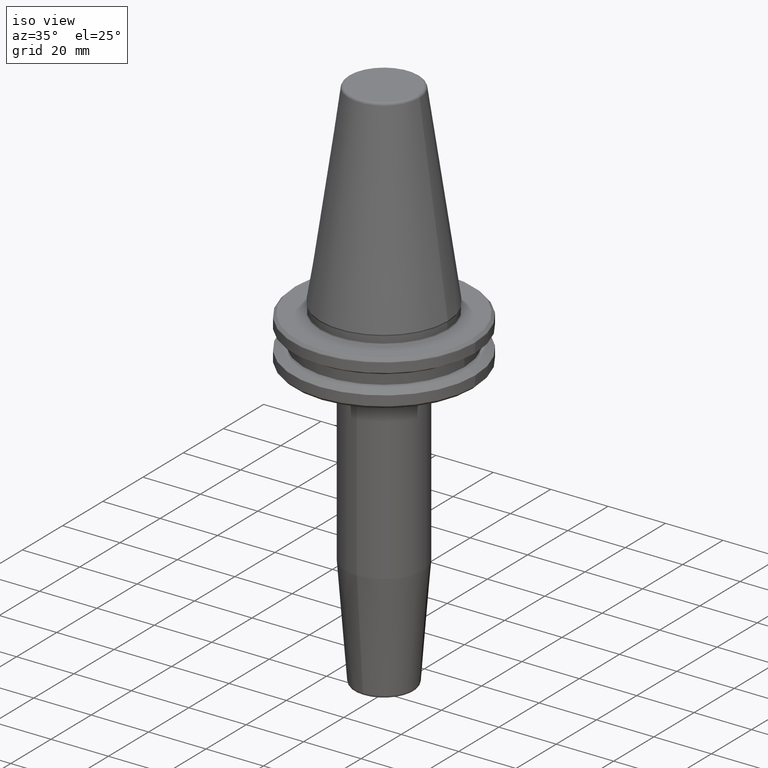
[diagram: clean part render]
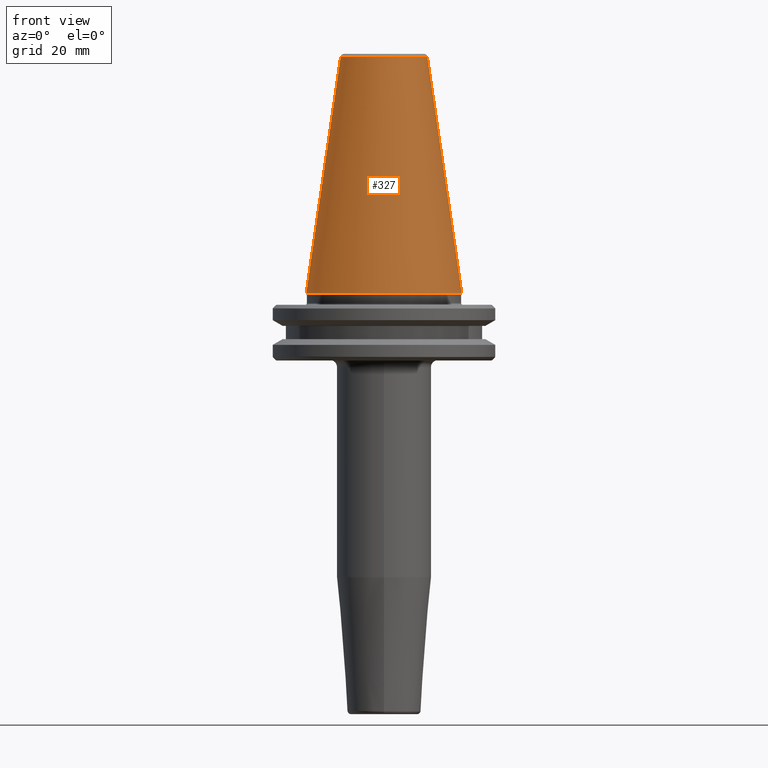
[diagram: tour spotlight — one face highlighted and labeled with its STEP entity id]
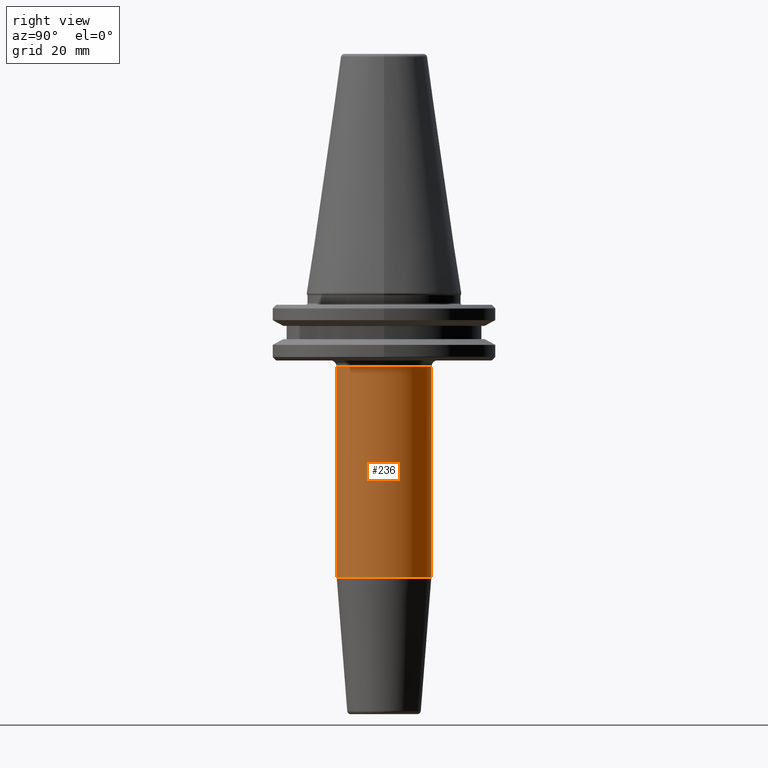
[diagram: tour spotlight — one face highlighted and labeled with its STEP entity id]
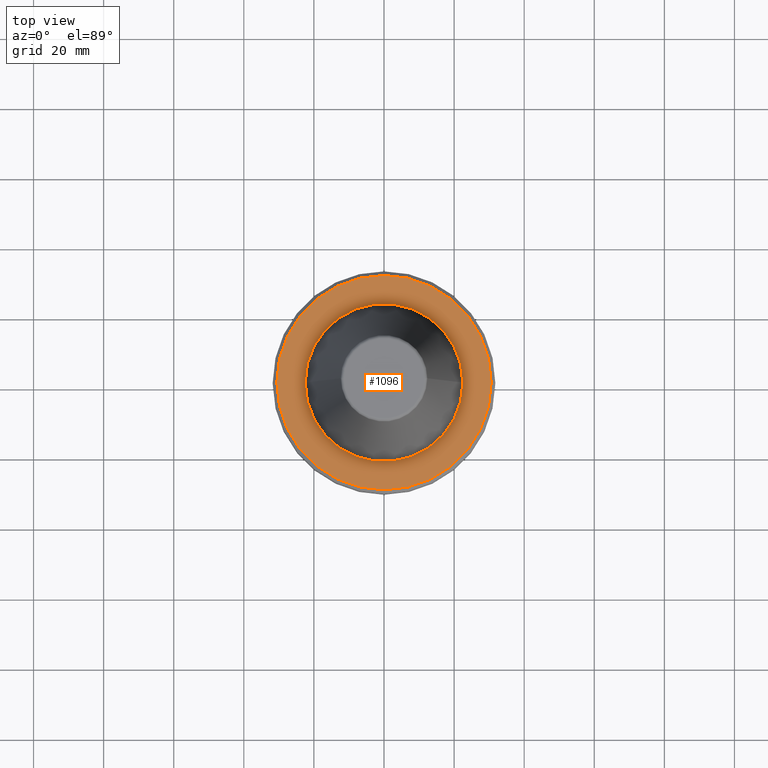
[diagram: tour spotlight — one face highlighted and labeled with its STEP entity id]
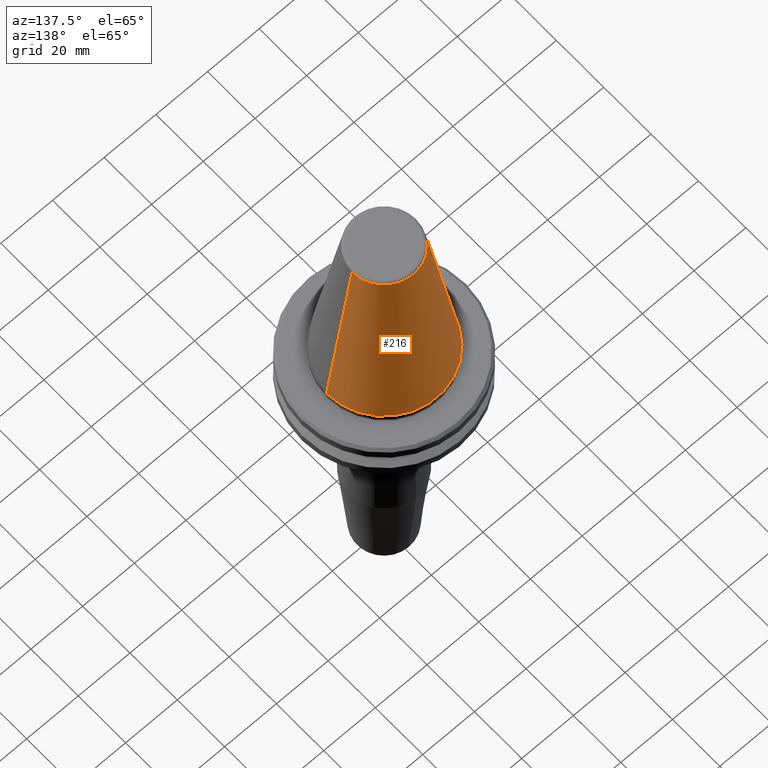
[diagram: tour spotlight — one face highlighted and labeled with its STEP entity id]
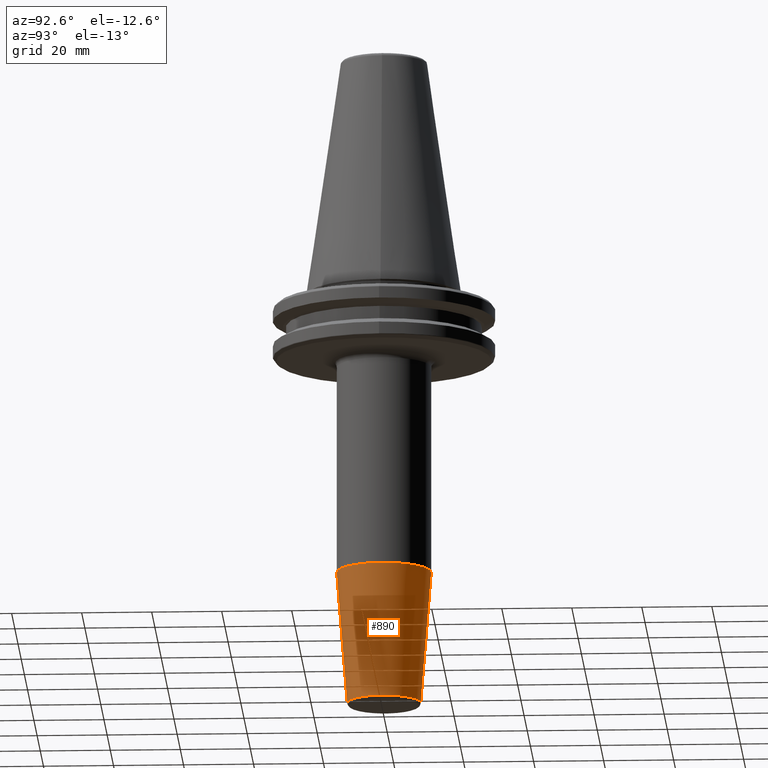
[diagram: tour spotlight — one face highlighted and labeled with its STEP entity id]
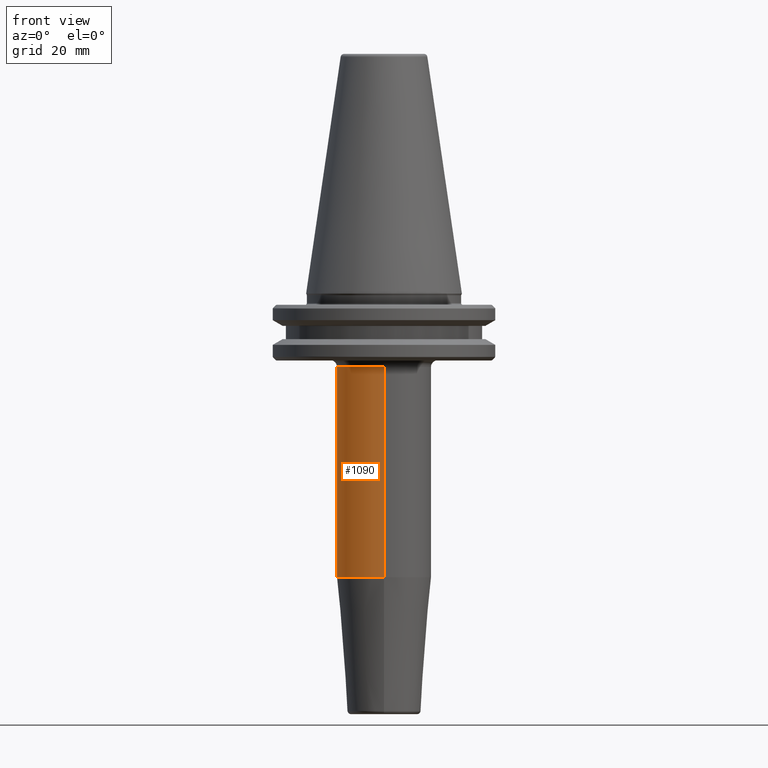
[diagram: tour spotlight — one face highlighted and labeled with its STEP entity id]
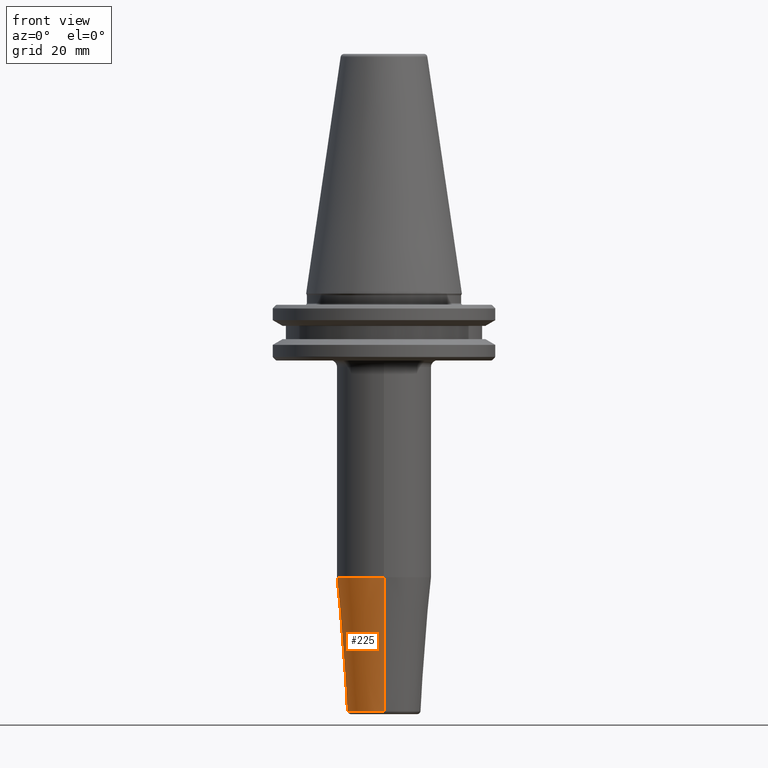
[diagram: tour spotlight — one face highlighted and labeled with its STEP entity id]
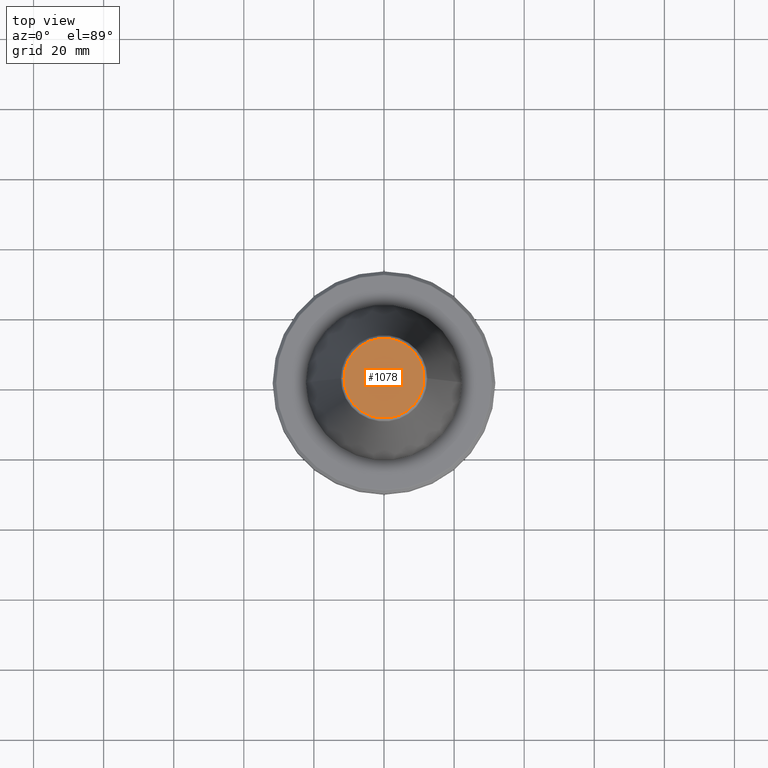
[diagram: tour spotlight — one face highlighted and labeled with its STEP entity id]
A machine part: a face-by-face anatomy tour. The part has 46 B-rep faces; the first image is the clean iso view, then the 8 largest visible faces are spotlighted one at a time (largest first), each with its STEP entity span.

Face 1 — front view, entity #327. In plain terms, the highlighted conical surface has half-angle 8.297 deg.
Definition (entity closure, byte-faithful):
#17 = DIRECTION ( 'NONE',  ( 0.0000000000000000000, 0.0000000000000000000, -1.000000000000000000 ) ) ;
#20 = VERTEX_POINT ( 'NONE', #575 ) ;
#21 = CARTESIAN_POINT ( 'NONE',  ( 22.22500000000000500, 0.0000000000000000000, 0.0000000000000000000 ) ) ;
#55 = DIRECTION ( 'NONE',  ( 1.000000000000000000, 0.0000000000000000000, 0.0000000000000000000 ) ) ;
#85 = CIRCLE ( 'NONE', #1028, 22.22500000000000500 ) ;
#188 = VERTEX_POINT ( 'NONE', #514 ) ;
#193 = LINE ( 'NONE', #336, #438 ) ;
#260 = AXIS2_PLACEMENT_3D ( 'NONE', #605, #17, #319 ) ;
#310 = EDGE_LOOP ( 'NONE', ( #326, #668, #1104, #570 ) ) ;
#319 = DIRECTION ( 'NONE',  ( -1.000000000000000000, 0.0000000000000000000, 0.0000000000000000000 ) ) ;
#326 = ORIENTED_EDGE ( 'NONE', *, *, #374, .F. ) ;
#327 = ADVANCED_FACE ( 'NONE', ( #967 ), #865, .T. ) ;
#336 = CARTESIAN_POINT ( 'NONE',  ( -12.37469537611110800, 0.0000000000000000000, 67.54430822726729400 ) ) ;
#374 = EDGE_CURVE ( 'NONE', #970, #1168, #675, .T. ) ;
#410 = AXIS2_PLACEMENT_3D ( 'NONE', #823, #635, #55 ) ;
#413 = CARTESIAN_POINT ( 'NONE',  ( 12.37469537611110800, 1.515463108277802100E-015, 67.54430822726729400 ) ) ;
#438 = VECTOR ( 'NONE', #639, 1000.000000000000000 ) ;
#468 = EDGE_CURVE ( 'NONE', #20, #188, #193, .T. ) ;
#485 = EDGE_CURVE ( 'NONE', #20, #970, #945, .T. ) ;
#513 = DIRECTION ( 'NONE',  ( 0.1443082272673071000, 1.767266086135364600E-017, -0.9895327864921743500 ) ) ;
#514 = CARTESIAN_POINT ( 'NONE',  ( -22.22500000000000500, 2.721777511104993200E-015, 0.0000000000000000000 ) ) ;
#519 = DIRECTION ( 'NONE',  ( -0.0000000000000000000, -0.0000000000000000000, 1.000000000000000000 ) ) ;
#554 = CARTESIAN_POINT ( 'NONE',  ( 12.37469537611110800, 2.118620309691397700E-015, 67.54430822726729400 ) ) ;
#570 = ORIENTED_EDGE ( 'NONE', *, *, #1136, .T. ) ;
#575 = CARTESIAN_POINT ( 'NONE',  ( -12.37469537611110800, 0.0000000000000000000, 67.54430822726729400 ) ) ;
#585 = VECTOR ( 'NONE', #513, 1000.000000000000000 ) ;
#605 = CARTESIAN_POINT ( 'NONE',  ( 0.0000000000000000000, 0.0000000000000000000, 67.54430822726729400 ) ) ;
#635 = DIRECTION ( 'NONE',  ( -0.0000000000000000000, -0.0000000000000000000, 1.000000000000000000 ) ) ;
#639 = DIRECTION ( 'NONE',  ( -0.1443082272673071000, 0.0000000000000000000, -0.9895327864921743500 ) ) ;
#668 = ORIENTED_EDGE ( 'NONE', *, *, #485, .F. ) ;
#675 = LINE ( 'NONE', #413, #585 ) ;
#823 = CARTESIAN_POINT ( 'NONE',  ( 0.0000000000000000000, 0.0000000000000000000, 67.54430822726729400 ) ) ;
#865 = CONICAL_SURFACE ( 'NONE', #260, 12.37469537611110800, 0.1448138465474191100 ) ;
#945 = CIRCLE ( 'NONE', #410, 12.37469537611110800 ) ;
#967 = FACE_OUTER_BOUND ( 'NONE', #310, .T. ) ;
#970 = VERTEX_POINT ( 'NONE', #554 ) ;
#1028 = AXIS2_PLACEMENT_3D ( 'NONE', #1086, #519, #1186 ) ;
#1086 = CARTESIAN_POINT ( 'NONE',  ( 0.0000000000000000000, 0.0000000000000000000, 0.0000000000000000000 ) ) ;
#1104 = ORIENTED_EDGE ( 'NONE', *, *, #468, .T. ) ;
#1136 = EDGE_CURVE ( 'NONE', #188, #1168, #85, .T. ) ;
#1168 = VERTEX_POINT ( 'NONE', #21 ) ;
#1186 = DIRECTION ( 'NONE',  ( 1.000000000000000000, 0.0000000000000000000, 0.0000000000000000000 ) ) ;

Face 2 — right view, entity #236. In plain terms, the highlighted cylindrical surface (partial cylindrical patch) has radius 13.5 mm, axis along (-0, 0, -1).
Definition (entity closure, byte-faithful):
#13 = DIRECTION ( 'NONE',  ( -0.0000000000000000000, 1.946757673717420000E-016, -1.000000000000000000 ) ) ;
#34 = CARTESIAN_POINT ( 'NONE',  ( 0.0000000000000000000, -5.204200571937971300E-015, -80.95984488719962300 ) ) ;
#101 = CIRCLE ( 'NONE', #947, 13.50000000000001600 ) ;
#134 = DIRECTION ( 'NONE',  ( 0.0000000000000000000, 1.000000000000000000, 0.0000000000000000000 ) ) ;
#156 = AXIS2_PLACEMENT_3D ( 'NONE', #1259, #13, #799 ) ;
#197 = EDGE_CURVE ( 'NONE', #460, #954, #101, .T. ) ;
#217 = DIRECTION ( 'NONE',  ( -0.0000000000000000000, 1.946757673717420000E-016, -1.000000000000000000 ) ) ;
#221 = EDGE_CURVE ( 'NONE', #954, #494, #1111, .T. ) ;
#232 = FACE_OUTER_BOUND ( 'NONE', #664, .T. ) ;
#236 = ADVANCED_FACE ( 'NONE', ( #232 ), #850, .T. ) ;
#245 = DIRECTION ( 'NONE',  ( -0.0000000000000000000, 1.946757673717420000E-016, -1.000000000000000000 ) ) ;
#343 = VECTOR ( 'NONE', #1179, 1000.000000000000000 ) ;
#344 = VERTEX_POINT ( 'NONE', #882 ) ;
#361 = CARTESIAN_POINT ( 'NONE',  ( 1.653273178848929200E-015, -13.50000000000003000, -20.98284271247461100 ) ) ;
#415 = EDGE_CURVE ( 'NONE', #460, #344, #841, .T. ) ;
#424 = ORIENTED_EDGE ( 'NONE', *, *, #221, .T. ) ;
#441 = CARTESIAN_POINT ( 'NONE',  ( 0.0000000000000000000, 13.49999999999999800, -20.98284271247460400 ) ) ;
#446 = EDGE_CURVE ( 'NONE', #344, #494, #717, .T. ) ;
#460 = VERTEX_POINT ( 'NONE', #441 ) ;
#488 = AXIS2_PLACEMENT_3D ( 'NONE', #34, #245, #134 ) ;
#494 = VERTEX_POINT ( 'NONE', #1117 ) ;
#560 = VECTOR ( 'NONE', #217, 1000.000000000000000 ) ;
#606 = CARTESIAN_POINT ( 'NONE',  ( 0.0000000000000000000, -1.688026949495919900E-014, -20.98284271247460700 ) ) ;
#664 = EDGE_LOOP ( 'NONE', ( #1234, #424, #996, #842 ) ) ;
#717 = CIRCLE ( 'NONE', #488, 13.50000000000000500 ) ;
#778 = CARTESIAN_POINT ( 'NONE',  ( 1.653273178848928200E-015, -13.50000000000000900, -120.0000000000000000 ) ) ;
#799 = DIRECTION ( 'NONE',  ( 0.0000000000000000000, 1.000000000000000000, 0.0000000000000000000 ) ) ;
#841 = LINE ( 'NONE', #877, #560 ) ;
#842 = ORIENTED_EDGE ( 'NONE', *, *, #415, .F. ) ;
#850 = CYLINDRICAL_SURFACE ( 'NONE', #156, 13.50000000000001100 ) ;
#877 = CARTESIAN_POINT ( 'NONE',  ( 0.0000000000000000000, 13.50000000000001200, -120.0000000000000000 ) ) ;
#882 = CARTESIAN_POINT ( 'NONE',  ( 1.653273178848927500E-015, 13.50000000000000000, -80.95984488719962300 ) ) ;
#947 = AXIS2_PLACEMENT_3D ( 'NONE', #606, #993, #1091 ) ;
#954 = VERTEX_POINT ( 'NONE', #361 ) ;
#993 = DIRECTION ( 'NONE',  ( -0.0000000000000000000, 1.946757673717420000E-016, -1.000000000000000000 ) ) ;
#996 = ORIENTED_EDGE ( 'NONE', *, *, #446, .F. ) ;
#1091 = DIRECTION ( 'NONE',  ( 0.0000000000000000000, 1.000000000000000000, 2.569960705150822400E-016 ) ) ;
#1111 = LINE ( 'NONE', #778, #343 ) ;
#1117 = CARTESIAN_POINT ( 'NONE',  ( 0.0000000000000000000, -13.50000000000001100, -80.95984488719962300 ) ) ;
#1179 = DIRECTION ( 'NONE',  ( -0.0000000000000000000, 1.946757673717420000E-016, -1.000000000000000000 ) ) ;
#1234 = ORIENTED_EDGE ( 'NONE', *, *, #197, .T. ) ;
#1259 = CARTESIAN_POINT ( 'NONE',  ( 0.0000000000000000000, 2.395971582958279500E-015, -120.0000000000000000 ) ) ;

Face 3 — top view, entity #1096. In plain terms, the highlighted planar face has unit normal (0, -0, 1).
Definition (entity closure, byte-faithful):
#9 = DIRECTION ( 'NONE',  ( 1.000000000000000000, 0.0000000000000000000, 0.0000000000000000000 ) ) ;
#15 = ORIENTED_EDGE ( 'NONE', *, *, #727, .T. ) ;
#45 = AXIS2_PLACEMENT_3D ( 'NONE', #1189, #794, #317 ) ;
#73 = EDGE_LOOP ( 'NONE', ( #1046, #1030 ) ) ;
#77 = EDGE_LOOP ( 'NONE', ( #350, #15 ) ) ;
#80 = FACE_BOUND ( 'NONE', #73, .T. ) ;
#81 = VERTEX_POINT ( 'NONE', #393 ) ;
#90 = VERTEX_POINT ( 'NONE', #500 ) ;
#105 = CARTESIAN_POINT ( 'NONE',  ( 22.50000000000000000, 0.0000000000000000000, -3.199999999999996600 ) ) ;
#107 = DIRECTION ( 'NONE',  ( 1.000000000000000000, 0.0000000000000000000, 0.0000000000000000000 ) ) ;
#155 = DIRECTION ( 'NONE',  ( 1.000000000000000000, 0.0000000000000000000, 0.0000000000000000000 ) ) ;
#175 = VERTEX_POINT ( 'NONE', #105 ) ;
#189 = CIRCLE ( 'NONE', #833, 22.50000000000000000 ) ;
#196 = DIRECTION ( 'NONE',  ( 1.000000000000000000, 0.0000000000000000000, 0.0000000000000000000 ) ) ;
#212 = DIRECTION ( 'NONE',  ( -0.0000000000000000000, -0.0000000000000000000, 1.000000000000000000 ) ) ;
#317 = DIRECTION ( 'NONE',  ( 1.000000000000000000, 0.0000000000000000000, 0.0000000000000000000 ) ) ;
#350 = ORIENTED_EDGE ( 'NONE', *, *, #611, .T. ) ;
#365 = EDGE_CURVE ( 'NONE', #445, #175, #1129, .T. ) ;
#371 = CIRCLE ( 'NONE', #45, 30.58431457505076200 ) ;
#393 = CARTESIAN_POINT ( 'NONE',  ( -30.58431457505076200, 3.762817415969875600E-015, -3.199999999999994400 ) ) ;
#408 = CARTESIAN_POINT ( 'NONE',  ( 0.0000000000000000000, 0.0000000000000000000, -3.199999999999994400 ) ) ;
#445 = VERTEX_POINT ( 'NONE', #623 ) ;
#472 = CARTESIAN_POINT ( 'NONE',  ( 0.0000000000000000000, 0.0000000000000000000, -3.199999999999994400 ) ) ;
#500 = CARTESIAN_POINT ( 'NONE',  ( 30.58431457505076200, 0.0000000000000000000, -3.199999999999994400 ) ) ;
#555 = AXIS2_PLACEMENT_3D ( 'NONE', #925, #735, #155 ) ;
#611 = EDGE_CURVE ( 'NONE', #90, #81, #371, .T. ) ;
#623 = CARTESIAN_POINT ( 'NONE',  ( -22.50000000000000000, 2.755455298081544800E-015, -3.199999999999996600 ) ) ;
#688 = AXIS2_PLACEMENT_3D ( 'NONE', #408, #212, #9 ) ;
#694 = DIRECTION ( 'NONE',  ( 0.0000000000000000000, -0.0000000000000000000, 1.000000000000000000 ) ) ;
#727 = EDGE_CURVE ( 'NONE', #81, #90, #1156, .T. ) ;
#735 = DIRECTION ( 'NONE',  ( -0.0000000000000000000, -0.0000000000000000000, 1.000000000000000000 ) ) ;
#794 = DIRECTION ( 'NONE',  ( -0.0000000000000000000, -0.0000000000000000000, 1.000000000000000000 ) ) ;
#796 = EDGE_CURVE ( 'NONE', #175, #445, #189, .T. ) ;
#833 = AXIS2_PLACEMENT_3D ( 'NONE', #472, #1258, #196 ) ;
#855 = FACE_OUTER_BOUND ( 'NONE', #77, .T. ) ;
#925 = CARTESIAN_POINT ( 'NONE',  ( 0.0000000000000000000, 0.0000000000000000000, -3.199999999999994400 ) ) ;
#986 = CARTESIAN_POINT ( 'NONE',  ( 0.0000000000000000000, 0.0000000000000000000, -3.200000000000000200 ) ) ;
#1007 = AXIS2_PLACEMENT_3D ( 'NONE', #986, #694, #107 ) ;
#1030 = ORIENTED_EDGE ( 'NONE', *, *, #365, .F. ) ;
#1046 = ORIENTED_EDGE ( 'NONE', *, *, #796, .F. ) ;
#1069 = PLANE ( 'NONE',  #1007 ) ;
#1096 = ADVANCED_FACE ( 'NONE', ( #855, #80 ), #1069, .T. ) ;
#1129 = CIRCLE ( 'NONE', #688, 22.50000000000000000 ) ;
#1156 = CIRCLE ( 'NONE', #555, 30.58431457505076200 ) ;
#1189 = CARTESIAN_POINT ( 'NONE',  ( 0.0000000000000000000, 0.0000000000000000000, -3.199999999999994400 ) ) ;
#1258 = DIRECTION ( 'NONE',  ( -0.0000000000000000000, -0.0000000000000000000, 1.000000000000000000 ) ) ;

Face 4 — auxiliary view, entity #216. In plain terms, the highlighted conical surface has half-angle 8.297 deg.
Definition (entity closure, byte-faithful):
#20 = VERTEX_POINT ( 'NONE', #575 ) ;
#21 = CARTESIAN_POINT ( 'NONE',  ( 22.22500000000000500, 0.0000000000000000000, 0.0000000000000000000 ) ) ;
#104 = AXIS2_PLACEMENT_3D ( 'NONE', #231, #708, #325 ) ;
#188 = VERTEX_POINT ( 'NONE', #514 ) ;
#193 = LINE ( 'NONE', #336, #438 ) ;
#216 = ADVANCED_FACE ( 'NONE', ( #375 ), #1073, .T. ) ;
#231 = CARTESIAN_POINT ( 'NONE',  ( 0.0000000000000000000, 0.0000000000000000000, 67.54430822726729400 ) ) ;
#254 = DIRECTION ( 'NONE',  ( 1.000000000000000000, 0.0000000000000000000, 0.0000000000000000000 ) ) ;
#264 = ORIENTED_EDGE ( 'NONE', *, *, #374, .T. ) ;
#325 = DIRECTION ( 'NONE',  ( 1.000000000000000000, 0.0000000000000000000, 0.0000000000000000000 ) ) ;
#331 = DIRECTION ( 'NONE',  ( -0.0000000000000000000, -0.0000000000000000000, 1.000000000000000000 ) ) ;
#336 = CARTESIAN_POINT ( 'NONE',  ( -12.37469537611110800, 0.0000000000000000000, 67.54430822726729400 ) ) ;
#374 = EDGE_CURVE ( 'NONE', #970, #1168, #675, .T. ) ;
#375 = FACE_OUTER_BOUND ( 'NONE', #407, .T. ) ;
#407 = EDGE_LOOP ( 'NONE', ( #1074, #264, #423, #1207 ) ) ;
#413 = CARTESIAN_POINT ( 'NONE',  ( 12.37469537611110800, 1.515463108277802100E-015, 67.54430822726729400 ) ) ;
#423 = ORIENTED_EDGE ( 'NONE', *, *, #453, .T. ) ;
#438 = VECTOR ( 'NONE', #639, 1000.000000000000000 ) ;
#453 = EDGE_CURVE ( 'NONE', #1168, #188, #467, .T. ) ;
#457 = AXIS2_PLACEMENT_3D ( 'NONE', #1203, #331, #254 ) ;
#467 = CIRCLE ( 'NONE', #457, 22.22500000000000500 ) ;
#468 = EDGE_CURVE ( 'NONE', #20, #188, #193, .T. ) ;
#513 = DIRECTION ( 'NONE',  ( 0.1443082272673071000, 1.767266086135364600E-017, -0.9895327864921743500 ) ) ;
#514 = CARTESIAN_POINT ( 'NONE',  ( -22.22500000000000500, 2.721777511104993200E-015, 0.0000000000000000000 ) ) ;
#554 = CARTESIAN_POINT ( 'NONE',  ( 12.37469537611110800, 2.118620309691397700E-015, 67.54430822726729400 ) ) ;
#575 = CARTESIAN_POINT ( 'NONE',  ( -12.37469537611110800, 0.0000000000000000000, 67.54430822726729400 ) ) ;
#585 = VECTOR ( 'NONE', #513, 1000.000000000000000 ) ;
#592 = EDGE_CURVE ( 'NONE', #970, #20, #1107, .T. ) ;
#639 = DIRECTION ( 'NONE',  ( -0.1443082272673071000, 0.0000000000000000000, -0.9895327864921743500 ) ) ;
#675 = LINE ( 'NONE', #413, #585 ) ;
#708 = DIRECTION ( 'NONE',  ( -0.0000000000000000000, -0.0000000000000000000, 1.000000000000000000 ) ) ;
#874 = CARTESIAN_POINT ( 'NONE',  ( 0.0000000000000000000, 0.0000000000000000000, 67.54430822726729400 ) ) ;
#878 = DIRECTION ( 'NONE',  ( -1.000000000000000000, 0.0000000000000000000, 0.0000000000000000000 ) ) ;
#884 = DIRECTION ( 'NONE',  ( 0.0000000000000000000, 0.0000000000000000000, -1.000000000000000000 ) ) ;
#970 = VERTEX_POINT ( 'NONE', #554 ) ;
#984 = AXIS2_PLACEMENT_3D ( 'NONE', #874, #884, #878 ) ;
#1073 = CONICAL_SURFACE ( 'NONE', #984, 12.37469537611110800, 0.1448138465474191100 ) ;
#1074 = ORIENTED_EDGE ( 'NONE', *, *, #592, .F. ) ;
#1107 = CIRCLE ( 'NONE', #104, 12.37469537611110800 ) ;
#1168 = VERTEX_POINT ( 'NONE', #21 ) ;
#1203 = CARTESIAN_POINT ( 'NONE',  ( 0.0000000000000000000, 0.0000000000000000000, 0.0000000000000000000 ) ) ;
#1207 = ORIENTED_EDGE ( 'NONE', *, *, #468, .F. ) ;

Face 5 — auxiliary view, entity #890. In plain terms, the highlighted conical surface has half-angle 4.5 deg.
Definition (entity closure, byte-faithful):
#2 = VECTOR ( 'NONE', #547, 1000.000000000000000 ) ;
#24 = DIRECTION ( 'NONE',  ( 9.608468044709104300E-018, 0.07845909572783654800, 0.9969173337331286300 ) ) ;
#34 = CARTESIAN_POINT ( 'NONE',  ( 0.0000000000000000000, -5.204200571937971300E-015, -80.95984488719962300 ) ) ;
#42 = ORIENTED_EDGE ( 'NONE', *, *, #446, .T. ) ;
#134 = DIRECTION ( 'NONE',  ( 0.0000000000000000000, 1.000000000000000000, 0.0000000000000000000 ) ) ;
#159 = CARTESIAN_POINT ( 'NONE',  ( 0.0000000000000000000, -10.49999999999999600, -119.0784590957278200 ) ) ;
#176 = AXIS2_PLACEMENT_3D ( 'NONE', #739, #930, #1219 ) ;
#191 = VERTEX_POINT ( 'NONE', #321 ) ;
#226 = CARTESIAN_POINT ( 'NONE',  ( 0.0000000000000000000, 10.50000000000000000, -119.0784590957278200 ) ) ;
#245 = DIRECTION ( 'NONE',  ( -0.0000000000000000000, 1.946757673717420000E-016, -1.000000000000000000 ) ) ;
#321 = CARTESIAN_POINT ( 'NONE',  ( 1.285879139104720600E-015, -10.49999999999999600, -119.0784590957278200 ) ) ;
#344 = VERTEX_POINT ( 'NONE', #882 ) ;
#363 = AXIS2_PLACEMENT_3D ( 'NONE', #1071, #1182, #598 ) ;
#446 = EDGE_CURVE ( 'NONE', #344, #494, #717, .T. ) ;
#488 = AXIS2_PLACEMENT_3D ( 'NONE', #34, #245, #134 ) ;
#494 = VERTEX_POINT ( 'NONE', #1117 ) ;
#499 = EDGE_CURVE ( 'NONE', #624, #191, #1161, .T. ) ;
#531 = LINE ( 'NONE', #159, #2 ) ;
#547 = DIRECTION ( 'NONE',  ( 0.0000000000000000000, -0.07845909572783693600, 0.9969173337331286300 ) ) ;
#598 = DIRECTION ( 'NONE',  ( 0.0000000000000000000, 1.000000000000000000, 0.0000000000000000000 ) ) ;
#624 = VERTEX_POINT ( 'NONE', #226 ) ;
#713 = ORIENTED_EDGE ( 'NONE', *, *, #828, .T. ) ;
#717 = CIRCLE ( 'NONE', #488, 13.50000000000000500 ) ;
#739 = CARTESIAN_POINT ( 'NONE',  ( 0.0000000000000000000, 2.216569900254646300E-015, -119.0784590957278200 ) ) ;
#743 = EDGE_LOOP ( 'NONE', ( #1022, #713, #42, #994 ) ) ;
#753 = CONICAL_SURFACE ( 'NONE', #176, 10.49999999999999800, 0.07853981633973659800 ) ;
#828 = EDGE_CURVE ( 'NONE', #624, #344, #1100, .T. ) ;
#864 = VECTOR ( 'NONE', #24, 1000.000000000000000 ) ;
#882 = CARTESIAN_POINT ( 'NONE',  ( 1.653273178848927500E-015, 13.50000000000000000, -80.95984488719962300 ) ) ;
#890 = ADVANCED_FACE ( 'NONE', ( #1062 ), #753, .T. ) ;
#900 = EDGE_CURVE ( 'NONE', #191, #494, #531, .T. ) ;
#930 = DIRECTION ( 'NONE',  ( 0.0000000000000000000, -1.946757673717420000E-016, 1.000000000000000000 ) ) ;
#994 = ORIENTED_EDGE ( 'NONE', *, *, #900, .F. ) ;
#1022 = ORIENTED_EDGE ( 'NONE', *, *, #499, .F. ) ;
#1062 = FACE_OUTER_BOUND ( 'NONE', #743, .T. ) ;
#1071 = CARTESIAN_POINT ( 'NONE',  ( 0.0000000000000000000, 2.216569900254646300E-015, -119.0784590957278200 ) ) ;
#1100 = LINE ( 'NONE', #1253, #864 ) ;
#1117 = CARTESIAN_POINT ( 'NONE',  ( 0.0000000000000000000, -13.50000000000001100, -80.95984488719962300 ) ) ;
#1161 = CIRCLE ( 'NONE', #363, 10.49999999999999800 ) ;
#1182 = DIRECTION ( 'NONE',  ( -0.0000000000000000000, 1.946757673717420000E-016, -1.000000000000000000 ) ) ;
#1219 = DIRECTION ( 'NONE',  ( 0.0000000000000000000, -1.000000000000000000, 0.0000000000000000000 ) ) ;
#1253 = CARTESIAN_POINT ( 'NONE',  ( 1.285879139104720600E-015, 10.50000000000000000, -119.0784590957278200 ) ) ;

Face 6 — front view, entity #1090. In plain terms, the highlighted cylindrical surface (partial cylindrical patch) has radius 13.5 mm, axis along (-0, 0, -1).
Definition (entity closure, byte-faithful):
#4 = DIRECTION ( 'NONE',  ( -0.0000000000000000000, 1.946757673717420000E-016, -1.000000000000000000 ) ) ;
#60 = CARTESIAN_POINT ( 'NONE',  ( 0.0000000000000000000, -5.204200571937971300E-015, -80.95984488719962300 ) ) ;
#110 = FACE_OUTER_BOUND ( 'NONE', #385, .T. ) ;
#164 = CARTESIAN_POINT ( 'NONE',  ( 0.0000000000000000000, -1.688026949495919900E-014, -20.98284271247460700 ) ) ;
#168 = AXIS2_PLACEMENT_3D ( 'NONE', #164, #835, #265 ) ;
#172 = DIRECTION ( 'NONE',  ( 0.0000000000000000000, 1.000000000000000000, 0.0000000000000000000 ) ) ;
#217 = DIRECTION ( 'NONE',  ( -0.0000000000000000000, 1.946757673717420000E-016, -1.000000000000000000 ) ) ;
#221 = EDGE_CURVE ( 'NONE', #954, #494, #1111, .T. ) ;
#265 = DIRECTION ( 'NONE',  ( 0.0000000000000000000, 1.000000000000000000, 2.569960705150822400E-016 ) ) ;
#307 = AXIS2_PLACEMENT_3D ( 'NONE', #60, #748, #172 ) ;
#343 = VECTOR ( 'NONE', #1179, 1000.000000000000000 ) ;
#344 = VERTEX_POINT ( 'NONE', #882 ) ;
#349 = CYLINDRICAL_SURFACE ( 'NONE', #680, 13.50000000000001100 ) ;
#361 = CARTESIAN_POINT ( 'NONE',  ( 1.653273178848929200E-015, -13.50000000000003000, -20.98284271247461100 ) ) ;
#385 = EDGE_LOOP ( 'NONE', ( #480, #1158, #615, #879 ) ) ;
#415 = EDGE_CURVE ( 'NONE', #460, #344, #841, .T. ) ;
#441 = CARTESIAN_POINT ( 'NONE',  ( 0.0000000000000000000, 13.49999999999999800, -20.98284271247460400 ) ) ;
#460 = VERTEX_POINT ( 'NONE', #441 ) ;
#478 = CIRCLE ( 'NONE', #307, 13.50000000000000500 ) ;
#480 = ORIENTED_EDGE ( 'NONE', *, *, #221, .F. ) ;
#494 = VERTEX_POINT ( 'NONE', #1117 ) ;
#510 = DIRECTION ( 'NONE',  ( 0.0000000000000000000, 1.000000000000000000, 0.0000000000000000000 ) ) ;
#560 = VECTOR ( 'NONE', #217, 1000.000000000000000 ) ;
#615 = ORIENTED_EDGE ( 'NONE', *, *, #415, .T. ) ;
#680 = AXIS2_PLACEMENT_3D ( 'NONE', #1167, #4, #510 ) ;
#726 = CIRCLE ( 'NONE', #168, 13.50000000000001600 ) ;
#748 = DIRECTION ( 'NONE',  ( -0.0000000000000000000, 1.946757673717420000E-016, -1.000000000000000000 ) ) ;
#778 = CARTESIAN_POINT ( 'NONE',  ( 1.653273178848928200E-015, -13.50000000000000900, -120.0000000000000000 ) ) ;
#835 = DIRECTION ( 'NONE',  ( -0.0000000000000000000, 1.946757673717420000E-016, -1.000000000000000000 ) ) ;
#841 = LINE ( 'NONE', #877, #560 ) ;
#877 = CARTESIAN_POINT ( 'NONE',  ( 0.0000000000000000000, 13.50000000000001200, -120.0000000000000000 ) ) ;
#879 = ORIENTED_EDGE ( 'NONE', *, *, #949, .F. ) ;
#882 = CARTESIAN_POINT ( 'NONE',  ( 1.653273178848927500E-015, 13.50000000000000000, -80.95984488719962300 ) ) ;
#920 = EDGE_CURVE ( 'NONE', #954, #460, #726, .T. ) ;
#949 = EDGE_CURVE ( 'NONE', #494, #344, #478, .T. ) ;
#954 = VERTEX_POINT ( 'NONE', #361 ) ;
#1090 = ADVANCED_FACE ( 'NONE', ( #110 ), #349, .T. ) ;
#1111 = LINE ( 'NONE', #778, #343 ) ;
#1117 = CARTESIAN_POINT ( 'NONE',  ( 0.0000000000000000000, -13.50000000000001100, -80.95984488719962300 ) ) ;
#1158 = ORIENTED_EDGE ( 'NONE', *, *, #920, .T. ) ;
#1167 = CARTESIAN_POINT ( 'NONE',  ( 0.0000000000000000000, 2.395971582958279500E-015, -120.0000000000000000 ) ) ;
#1179 = DIRECTION ( 'NONE',  ( -0.0000000000000000000, 1.946757673717420000E-016, -1.000000000000000000 ) ) ;

Face 7 — front view, entity #225. In plain terms, the highlighted conical surface has half-angle 4.5 deg.
Definition (entity closure, byte-faithful):
#2 = VECTOR ( 'NONE', #547, 1000.000000000000000 ) ;
#24 = DIRECTION ( 'NONE',  ( 9.608468044709104300E-018, 0.07845909572783654800, 0.9969173337331286300 ) ) ;
#60 = CARTESIAN_POINT ( 'NONE',  ( 0.0000000000000000000, -5.204200571937971300E-015, -80.95984488719962300 ) ) ;
#61 = ORIENTED_EDGE ( 'NONE', *, *, #900, .T. ) ;
#112 = DIRECTION ( 'NONE',  ( 0.0000000000000000000, -1.946757673717420000E-016, 1.000000000000000000 ) ) ;
#159 = CARTESIAN_POINT ( 'NONE',  ( 0.0000000000000000000, -10.49999999999999600, -119.0784590957278200 ) ) ;
#172 = DIRECTION ( 'NONE',  ( 0.0000000000000000000, 1.000000000000000000, 0.0000000000000000000 ) ) ;
#191 = VERTEX_POINT ( 'NONE', #321 ) ;
#225 = ADVANCED_FACE ( 'NONE', ( #1138 ), #1228, .T. ) ;
#226 = CARTESIAN_POINT ( 'NONE',  ( 0.0000000000000000000, 10.50000000000000000, -119.0784590957278200 ) ) ;
#252 = AXIS2_PLACEMENT_3D ( 'NONE', #1068, #112, #787 ) ;
#290 = AXIS2_PLACEMENT_3D ( 'NONE', #543, #883, #369 ) ;
#307 = AXIS2_PLACEMENT_3D ( 'NONE', #60, #748, #172 ) ;
#321 = CARTESIAN_POINT ( 'NONE',  ( 1.285879139104720600E-015, -10.49999999999999600, -119.0784590957278200 ) ) ;
#344 = VERTEX_POINT ( 'NONE', #882 ) ;
#354 = ORIENTED_EDGE ( 'NONE', *, *, #1009, .F. ) ;
#369 = DIRECTION ( 'NONE',  ( 0.0000000000000000000, 1.000000000000000000, 0.0000000000000000000 ) ) ;
#478 = CIRCLE ( 'NONE', #307, 13.50000000000000500 ) ;
#494 = VERTEX_POINT ( 'NONE', #1117 ) ;
#531 = LINE ( 'NONE', #159, #2 ) ;
#536 = EDGE_LOOP ( 'NONE', ( #1236, #354, #61, #1210 ) ) ;
#543 = CARTESIAN_POINT ( 'NONE',  ( 0.0000000000000000000, 2.216569900254646300E-015, -119.0784590957278200 ) ) ;
#547 = DIRECTION ( 'NONE',  ( 0.0000000000000000000, -0.07845909572783693600, 0.9969173337331286300 ) ) ;
#624 = VERTEX_POINT ( 'NONE', #226 ) ;
#748 = DIRECTION ( 'NONE',  ( -0.0000000000000000000, 1.946757673717420000E-016, -1.000000000000000000 ) ) ;
#787 = DIRECTION ( 'NONE',  ( 0.0000000000000000000, -1.000000000000000000, 0.0000000000000000000 ) ) ;
#828 = EDGE_CURVE ( 'NONE', #624, #344, #1100, .T. ) ;
#864 = VECTOR ( 'NONE', #24, 1000.000000000000000 ) ;
#882 = CARTESIAN_POINT ( 'NONE',  ( 1.653273178848927500E-015, 13.50000000000000000, -80.95984488719962300 ) ) ;
#883 = DIRECTION ( 'NONE',  ( -0.0000000000000000000, 1.946757673717420000E-016, -1.000000000000000000 ) ) ;
#900 = EDGE_CURVE ( 'NONE', #191, #494, #531, .T. ) ;
#949 = EDGE_CURVE ( 'NONE', #494, #344, #478, .T. ) ;
#1009 = EDGE_CURVE ( 'NONE', #191, #624, #1171, .T. ) ;
#1068 = CARTESIAN_POINT ( 'NONE',  ( 0.0000000000000000000, 2.216569900254646300E-015, -119.0784590957278200 ) ) ;
#1100 = LINE ( 'NONE', #1253, #864 ) ;
#1117 = CARTESIAN_POINT ( 'NONE',  ( 0.0000000000000000000, -13.50000000000001100, -80.95984488719962300 ) ) ;
#1138 = FACE_OUTER_BOUND ( 'NONE', #536, .T. ) ;
#1171 = CIRCLE ( 'NONE', #290, 10.49999999999999800 ) ;
#1210 = ORIENTED_EDGE ( 'NONE', *, *, #949, .T. ) ;
#1228 = CONICAL_SURFACE ( 'NONE', #252, 10.49999999999999800, 0.07853981633973659800 ) ;
#1236 = ORIENTED_EDGE ( 'NONE', *, *, #828, .F. ) ;
#1253 = CARTESIAN_POINT ( 'NONE',  ( 1.285879139104720600E-015, 10.50000000000000000, -119.0784590957278200 ) ) ;

Face 8 — top view, entity #1078. In plain terms, the highlighted planar face has unit normal (0, -0, 1).
Definition (entity closure, byte-faithful):
#30 = CARTESIAN_POINT ( 'NONE',  ( 11.38516258961893100, 0.0000000000000000000, 68.40000000000000600 ) ) ;
#33 = ORIENTED_EDGE ( 'NONE', *, *, #834, .T. ) ;
#70 = ORIENTED_EDGE ( 'NONE', *, *, #137, .T. ) ;
#92 = CIRCLE ( 'NONE', #285, 11.38516258961893100 ) ;
#137 = EDGE_CURVE ( 'NONE', #646, #961, #656, .T. ) ;
#285 = AXIS2_PLACEMENT_3D ( 'NONE', #520, #1153, #550 ) ;
#305 = AXIS2_PLACEMENT_3D ( 'NONE', #572, #683, #974 ) ;
#370 = EDGE_LOOP ( 'NONE', ( #70, #33 ) ) ;
#403 = DIRECTION ( 'NONE',  ( 1.000000000000000000, 0.0000000000000000000, 0.0000000000000000000 ) ) ;
#520 = CARTESIAN_POINT ( 'NONE',  ( 0.0000000000000000000, 0.0000000000000000000, 68.40000000000000600 ) ) ;
#550 = DIRECTION ( 'NONE',  ( 1.000000000000000000, 0.0000000000000000000, 0.0000000000000000000 ) ) ;
#572 = CARTESIAN_POINT ( 'NONE',  ( 0.0000000000000000000, 0.0000000000000000000, 68.40000000000000600 ) ) ;
#634 = FACE_OUTER_BOUND ( 'NONE', #370, .T. ) ;
#644 = CARTESIAN_POINT ( 'NONE',  ( -11.38516258961893100, 1.454871700296352000E-015, 68.40000000000000600 ) ) ;
#646 = VERTEX_POINT ( 'NONE', #30 ) ;
#656 = CIRCLE ( 'NONE', #305, 11.38516258961893100 ) ;
#683 = DIRECTION ( 'NONE',  ( -0.0000000000000000000, -0.0000000000000000000, 1.000000000000000000 ) ) ;
#684 = PLANE ( 'NONE',  #764 ) ;
#764 = AXIS2_PLACEMENT_3D ( 'NONE', #1261, #980, #403 ) ;
#834 = EDGE_CURVE ( 'NONE', #961, #646, #92, .T. ) ;
#961 = VERTEX_POINT ( 'NONE', #644 ) ;
#974 = DIRECTION ( 'NONE',  ( 1.000000000000000000, 0.0000000000000000000, 0.0000000000000000000 ) ) ;
#980 = DIRECTION ( 'NONE',  ( 0.0000000000000000000, -0.0000000000000000000, 1.000000000000000000 ) ) ;
#1078 = ADVANCED_FACE ( 'NONE', ( #634 ), #684, .T. ) ;
#1153 = DIRECTION ( 'NONE',  ( -0.0000000000000000000, -0.0000000000000000000, 1.000000000000000000 ) ) ;
#1261 = CARTESIAN_POINT ( 'NONE',  ( 0.0000000000000000000, -8.337524199435086500E-014, 68.39999999999999100 ) ) ;